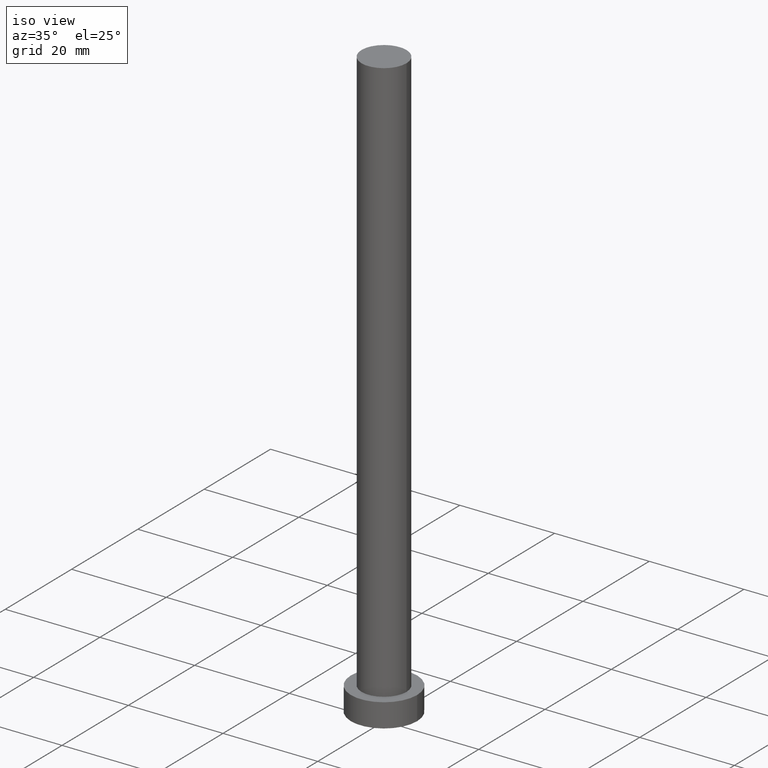
[diagram: clean part render]
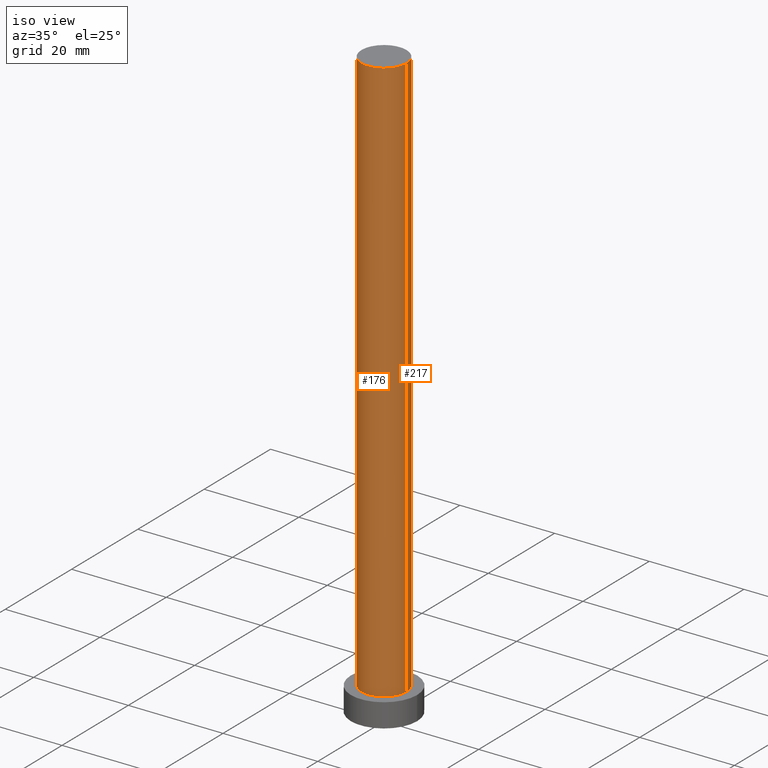
[diagram: same view with one multi-face feature highlighted, each face labeled with its STEP entity id]
A machine part, iso view. The highlighted faces form ONE feature: a constant-radius fillet chain: 2 tangent blend faces with common blend radius 4.75 mm. The faces share edges in the B-rep.
Their STEP definitions:
[1] entity #176 (Cylinder):
#4 = CYLINDRICAL_SURFACE ( 'NONE', #186, 4.750000000000000888 ) ;
#21 = DIRECTION ( 'NONE',  ( -1.000000000000000000, 0.000000000000000000, 0.000000000000000000 ) ) ;
#28 = DIRECTION ( 'NONE',  ( -0.000000000000000000, -0.000000000000000000, -1.000000000000000000 ) ) ;
#32 = EDGE_CURVE ( 'NONE', #55, #198, #82, .T. ) ;
#51 = DIRECTION ( 'NONE',  ( 0.000000000000000000, 0.000000000000000000, 1.000000000000000000 ) ) ;
#55 = VERTEX_POINT ( 'NONE', #134 ) ;
#56 = VECTOR ( 'NONE', #28, 1000.000000000000000 ) ;
#58 = EDGE_CURVE ( 'NONE', #55, #178, #110, .T. ) ;
#63 = DIRECTION ( 'NONE',  ( -0.000000000000000000, -0.000000000000000000, -1.000000000000000000 ) ) ;
#69 = DIRECTION ( 'NONE',  ( 1.000000000000000000, 0.000000000000000000, 0.000000000000000000 ) ) ;
#71 = VERTEX_POINT ( 'NONE', #252 ) ;
#75 = CARTESIAN_POINT ( 'NONE',  ( 0.000000000000000000, 0.000000000000000000, 125.0000000000000000 ) ) ;
#79 = CARTESIAN_POINT ( 'NONE',  ( -4.750000000000000888, 0.000000000000000000, 5.000000000000000000 ) ) ;
#82 = CIRCLE ( 'NONE', #149, 4.750000000000000888 ) ;
#86 = EDGE_LOOP ( 'NONE', ( #103, #123, #229, #131 ) ) ;
#87 = CARTESIAN_POINT ( 'NONE',  ( 0.000000000000000000, 0.000000000000000000, 5.000000000000000000 ) ) ;
#93 = CARTESIAN_POINT ( 'NONE',  ( 0.000000000000000000, 0.000000000000000000, 125.0000000000000000 ) ) ;
#100 = CIRCLE ( 'NONE', #244, 4.750000000000000888 ) ;
#103 = ORIENTED_EDGE ( 'NONE', *, *, #167, .F. ) ;
#104 = VECTOR ( 'NONE', #209, 1000.000000000000000 ) ;
#108 = CARTESIAN_POINT ( 'NONE',  ( -4.750000000000000888, 0.000000000000000000, 125.0000000000000000 ) ) ;
#110 = LINE ( 'NONE', #108, #104 ) ;
#118 = FACE_OUTER_BOUND ( 'NONE', #86, .T. ) ;
#123 = ORIENTED_EDGE ( 'NONE', *, *, #32, .F. ) ;
#131 = ORIENTED_EDGE ( 'NONE', *, *, #132, .T. ) ;
#132 = EDGE_CURVE ( 'NONE', #178, #71, #100, .T. ) ;
#134 = CARTESIAN_POINT ( 'NONE',  ( -4.750000000000000888, 0.000000000000000000, 125.0000000000000000 ) ) ;
#140 = CARTESIAN_POINT ( 'NONE',  ( 4.750000000000000888, 5.817072295949928412E-16, 125.0000000000000000 ) ) ;
#141 = DIRECTION ( 'NONE',  ( 0.000000000000000000, 0.000000000000000000, 1.000000000000000000 ) ) ;
#149 = AXIS2_PLACEMENT_3D ( 'NONE', #93, #51, #69 ) ;
#164 = CARTESIAN_POINT ( 'NONE',  ( 4.750000000000000888, 5.817072295949928412E-16, 125.0000000000000000 ) ) ;
#167 = EDGE_CURVE ( 'NONE', #198, #71, #199, .T. ) ;
#176 = ADVANCED_FACE ( 'NONE', ( #118 ), #4, .T. ) ;
#178 = VERTEX_POINT ( 'NONE', #79 ) ;
#186 = AXIS2_PLACEMENT_3D ( 'NONE', #75, #63, #21 ) ;
#198 = VERTEX_POINT ( 'NONE', #140 ) ;
#199 = LINE ( 'NONE', #164, #56 ) ;
#209 = DIRECTION ( 'NONE',  ( -0.000000000000000000, -0.000000000000000000, -1.000000000000000000 ) ) ;
#223 = DIRECTION ( 'NONE',  ( 1.000000000000000000, 0.000000000000000000, 0.000000000000000000 ) ) ;
#229 = ORIENTED_EDGE ( 'NONE', *, *, #58, .T. ) ;
#244 = AXIS2_PLACEMENT_3D ( 'NONE', #87, #141, #223 ) ;
#252 = CARTESIAN_POINT ( 'NONE',  ( 4.750000000000000888, 5.817072295949928412E-16, 5.000000000000000000 ) ) ;
[2] entity #217 (Cylinder):
#7 = AXIS2_PLACEMENT_3D ( 'NONE', #196, #38, #137 ) ;
#28 = DIRECTION ( 'NONE',  ( -0.000000000000000000, -0.000000000000000000, -1.000000000000000000 ) ) ;
#37 = CARTESIAN_POINT ( 'NONE',  ( 0.000000000000000000, 0.000000000000000000, 125.0000000000000000 ) ) ;
#38 = DIRECTION ( 'NONE',  ( 0.000000000000000000, 0.000000000000000000, 1.000000000000000000 ) ) ;
#49 = DIRECTION ( 'NONE',  ( 1.000000000000000000, 0.000000000000000000, 0.000000000000000000 ) ) ;
#55 = VERTEX_POINT ( 'NONE', #134 ) ;
#56 = VECTOR ( 'NONE', #28, 1000.000000000000000 ) ;
#58 = EDGE_CURVE ( 'NONE', #55, #178, #110, .T. ) ;
#71 = VERTEX_POINT ( 'NONE', #252 ) ;
#77 = EDGE_CURVE ( 'NONE', #198, #55, #142, .T. ) ;
#79 = CARTESIAN_POINT ( 'NONE',  ( -4.750000000000000888, 0.000000000000000000, 5.000000000000000000 ) ) ;
#92 = CARTESIAN_POINT ( 'NONE',  ( 0.000000000000000000, 0.000000000000000000, 125.0000000000000000 ) ) ;
#104 = VECTOR ( 'NONE', #209, 1000.000000000000000 ) ;
#108 = CARTESIAN_POINT ( 'NONE',  ( -4.750000000000000888, 0.000000000000000000, 125.0000000000000000 ) ) ;
#110 = LINE ( 'NONE', #108, #104 ) ;
#133 = ORIENTED_EDGE ( 'NONE', *, *, #167, .T. ) ;
#134 = CARTESIAN_POINT ( 'NONE',  ( -4.750000000000000888, 0.000000000000000000, 125.0000000000000000 ) ) ;
#135 = DIRECTION ( 'NONE',  ( -1.000000000000000000, 0.000000000000000000, 0.000000000000000000 ) ) ;
#137 = DIRECTION ( 'NONE',  ( 1.000000000000000000, 0.000000000000000000, 0.000000000000000000 ) ) ;
#138 = FACE_OUTER_BOUND ( 'NONE', #228, .T. ) ;
#140 = CARTESIAN_POINT ( 'NONE',  ( 4.750000000000000888, 5.817072295949928412E-16, 125.0000000000000000 ) ) ;
#142 = CIRCLE ( 'NONE', #237, 4.750000000000000888 ) ;
#164 = CARTESIAN_POINT ( 'NONE',  ( 4.750000000000000888, 5.817072295949928412E-16, 125.0000000000000000 ) ) ;
#167 = EDGE_CURVE ( 'NONE', #198, #71, #199, .T. ) ;
#169 = DIRECTION ( 'NONE',  ( 0.000000000000000000, 0.000000000000000000, 1.000000000000000000 ) ) ;
#174 = DIRECTION ( 'NONE',  ( -0.000000000000000000, -0.000000000000000000, -1.000000000000000000 ) ) ;
#178 = VERTEX_POINT ( 'NONE', #79 ) ;
#194 = CYLINDRICAL_SURFACE ( 'NONE', #219, 4.750000000000000888 ) ;
#196 = CARTESIAN_POINT ( 'NONE',  ( 0.000000000000000000, 0.000000000000000000, 5.000000000000000000 ) ) ;
#198 = VERTEX_POINT ( 'NONE', #140 ) ;
#199 = LINE ( 'NONE', #164, #56 ) ;
#200 = EDGE_CURVE ( 'NONE', #71, #178, #242, .T. ) ;
#201 = ORIENTED_EDGE ( 'NONE', *, *, #200, .T. ) ;
#209 = DIRECTION ( 'NONE',  ( -0.000000000000000000, -0.000000000000000000, -1.000000000000000000 ) ) ;
#217 = ADVANCED_FACE ( 'NONE', ( #138 ), #194, .T. ) ;
#219 = AXIS2_PLACEMENT_3D ( 'NONE', #37, #174, #135 ) ;
#228 = EDGE_LOOP ( 'NONE', ( #248, #133, #201, #249 ) ) ;
#237 = AXIS2_PLACEMENT_3D ( 'NONE', #92, #169, #49 ) ;
#242 = CIRCLE ( 'NONE', #7, 4.750000000000000888 ) ;
#248 = ORIENTED_EDGE ( 'NONE', *, *, #77, .F. ) ;
#249 = ORIENTED_EDGE ( 'NONE', *, *, #58, .F. ) ;
#252 = CARTESIAN_POINT ( 'NONE',  ( 4.750000000000000888, 5.817072295949928412E-16, 5.000000000000000000 ) ) ;